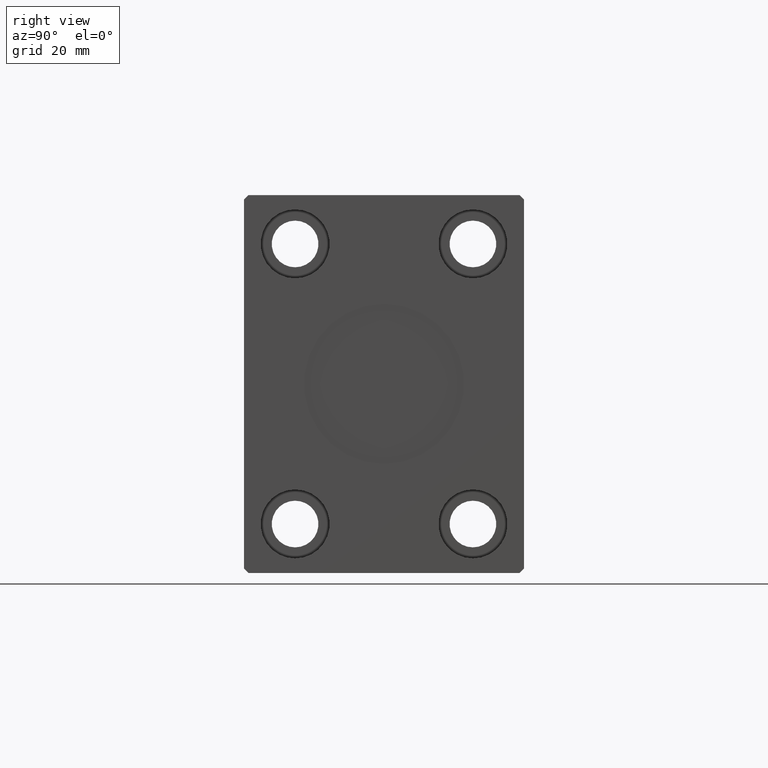
[diagram: clean part render]
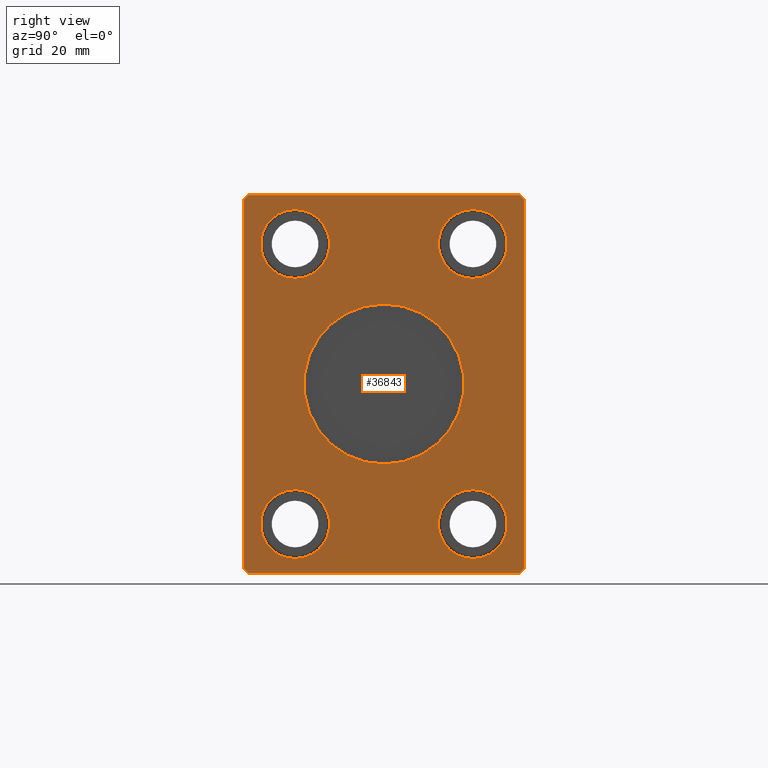
[diagram: same view with one face highlighted and labeled with its STEP entity id]
A machine part, right view. The second image highlights one B-rep face of the part: STEP entity #36843.
In plain terms, the highlighted planar face has unit normal (1, 0, 0).
Its self-contained STEP definition (entity closure, byte-faithful):
#116 = EDGE_CURVE ( 'NONE', #29037, #26347, #9587, .T. ) ;
#762 = AXIS2_PLACEMENT_3D ( 'NONE', #8054, #21176, #34299 ) ;
#823 = CIRCLE ( 'NONE', #26216, 7.750000000000000000 ) ;
#977 = DIRECTION ( 'NONE',  ( 0.000000000000000000, 0.000000000000000000, 1.000000000000000000 ) ) ;
#1123 = EDGE_CURVE ( 'NONE', #24333, #3547, #25897, .T. ) ;
#1917 = CARTESIAN_POINT ( 'NONE',  ( 126.0000000000000000, -30.50000000000000711, -42.50000000000000711 ) ) ;
#2100 = EDGE_LOOP ( 'NONE', ( #15589, #22171 ) ) ;
#2133 = VERTEX_POINT ( 'NONE', #34798 ) ;
#2176 = VERTEX_POINT ( 'NONE', #25128 ) ;
#2202 = EDGE_CURVE ( 'NONE', #31354, #2133, #26649, .T. ) ;
#2366 = CARTESIAN_POINT ( 'NONE',  ( 126.0000000000000000, -19.99999999999999645, -31.49999999999998579 ) ) ;
#2490 = CARTESIAN_POINT ( 'NONE',  ( 126.0000000000000000, 2.204364238465235428E-15, 18.00000000000000000 ) ) ;
#2646 = DIRECTION ( 'NONE',  ( 0.000000000000000000, 0.000000000000000000, -1.000000000000000000 ) ) ;
#2867 = FACE_BOUND ( 'NONE', #36093, .T. ) ;
#3120 = EDGE_CURVE ( 'NONE', #8507, #40627, #11581, .T. ) ;
#3384 = ORIENTED_EDGE ( 'NONE', *, *, #4286, .F. ) ;
#3546 = EDGE_CURVE ( 'NONE', #37913, #38639, #22515, .T. ) ;
#3547 = VERTEX_POINT ( 'NONE', #19152 ) ;
#3558 = VECTOR ( 'NONE', #16260, 1000.000000000000114 ) ;
#3682 = CARTESIAN_POINT ( 'NONE',  ( 126.0000000000000000, 31.50000000000001421, 41.49999999999999289 ) ) ;
#3929 = CARTESIAN_POINT ( 'NONE',  ( 126.0000000000000000, -19.99999999999999645, -23.74999999999998579 ) ) ;
#4286 = EDGE_CURVE ( 'NONE', #9559, #11345, #40404, .T. ) ;
#4415 = EDGE_CURVE ( 'NONE', #11345, #9559, #25316, .T. ) ;
#4643 = ORIENTED_EDGE ( 'NONE', *, *, #16616, .T. ) ;
#5217 = EDGE_LOOP ( 'NONE', ( #21263, #3384 ) ) ;
#5673 = LINE ( 'NONE', #42412, #26559 ) ;
#5866 = DIRECTION ( 'NONE',  ( 0.000000000000000000, 0.000000000000000000, -1.000000000000000000 ) ) ;
#5902 = ORIENTED_EDGE ( 'NONE', *, *, #3546, .F. ) ;
#6226 = DIRECTION ( 'NONE',  ( -1.000000000000000000, -0.000000000000000000, -0.000000000000000000 ) ) ;
#6233 = CARTESIAN_POINT ( 'NONE',  ( 126.0000000000000000, -19.99999999999999645, -31.49999999999998579 ) ) ;
#6281 = CARTESIAN_POINT ( 'NONE',  ( 126.0000000000000000, 0.000000000000000000, 0.000000000000000000 ) ) ;
#6303 = CARTESIAN_POINT ( 'NONE',  ( 126.0000000000000000, -31.50000000000000000, -41.50000000000000711 ) ) ;
#6561 = DIRECTION ( 'NONE',  ( 0.000000000000000000, 0.000000000000000000, 1.000000000000000000 ) ) ;
#6746 = VECTOR ( 'NONE', #26093, 1000.000000000000114 ) ;
#6820 = DIRECTION ( 'NONE',  ( 0.000000000000000000, 0.000000000000000000, 1.000000000000000000 ) ) ;
#6865 = AXIS2_PLACEMENT_3D ( 'NONE', #15927, #6226, #32052 ) ;
#6951 = DIRECTION ( 'NONE',  ( 0.000000000000000000, 0.7071067811865462405, 0.7071067811865489050 ) ) ;
#6959 = CARTESIAN_POINT ( 'NONE',  ( 126.0000000000000000, -30.50000000000000355, 42.49999999999999289 ) ) ;
#7088 = VERTEX_POINT ( 'NONE', #12485 ) ;
#7171 = LINE ( 'NONE', #6959, #19267 ) ;
#7396 = AXIS2_PLACEMENT_3D ( 'NONE', #39709, #10048, #6820 ) ;
#8054 = CARTESIAN_POINT ( 'NONE',  ( 126.0000000000000000, 20.00000000000000355, 31.50000000000001421 ) ) ;
#8057 = CARTESIAN_POINT ( 'NONE',  ( 126.0000000000000000, 20.00000000000000355, -39.24999999999998579 ) ) ;
#8123 = EDGE_LOOP ( 'NONE', ( #20203, #33066 ) ) ;
#8407 = CARTESIAN_POINT ( 'NONE',  ( 126.0000000000000000, -19.99999999999999645, -39.24999999999998579 ) ) ;
#8507 = VERTEX_POINT ( 'NONE', #9833 ) ;
#9238 = CARTESIAN_POINT ( 'NONE',  ( 126.0000000000000000, 20.00000000000000355, 31.50000000000001421 ) ) ;
#9256 = DIRECTION ( 'NONE',  ( 1.000000000000000000, -0.000000000000000000, -0.000000000000000000 ) ) ;
#9301 = FACE_BOUND ( 'NONE', #8123, .T. ) ;
#9447 = DIRECTION ( 'NONE',  ( 0.000000000000000000, 0.000000000000000000, -1.000000000000000000 ) ) ;
#9515 = PLANE ( 'NONE',  #13736 ) ;
#9559 = VERTEX_POINT ( 'NONE', #2490 ) ;
#9587 = LINE ( 'NONE', #13026, #17677 ) ;
#9750 = LINE ( 'NONE', #22646, #6746 ) ;
#9833 = CARTESIAN_POINT ( 'NONE',  ( 126.0000000000000000, -30.50000000000000711, -42.50000000000000711 ) ) ;
#10048 = DIRECTION ( 'NONE',  ( -1.000000000000000000, -0.000000000000000000, -0.000000000000000000 ) ) ;
#10173 = LINE ( 'NONE', #27175, #14459 ) ;
#10363 = VERTEX_POINT ( 'NONE', #20173 ) ;
#10910 = ORIENTED_EDGE ( 'NONE', *, *, #3120, .T. ) ;
#11191 = ORIENTED_EDGE ( 'NONE', *, *, #116, .T. ) ;
#11345 = VERTEX_POINT ( 'NONE', #19935 ) ;
#11581 = LINE ( 'NONE', #1917, #30790 ) ;
#12055 = DIRECTION ( 'NONE',  ( 0.000000000000000000, 0.000000000000000000, -1.000000000000000000 ) ) ;
#12297 = AXIS2_PLACEMENT_3D ( 'NONE', #41118, #17517, #977 ) ;
#12485 = CARTESIAN_POINT ( 'NONE',  ( 126.0000000000000000, -30.50000000000000355, 42.49999999999999289 ) ) ;
#12529 = FACE_OUTER_BOUND ( 'NONE', #26876, .T. ) ;
#12622 = ORIENTED_EDGE ( 'NONE', *, *, #15722, .T. ) ;
#12740 = FACE_BOUND ( 'NONE', #5217, .T. ) ;
#12946 = EDGE_CURVE ( 'NONE', #23159, #10363, #38435, .T. ) ;
#13026 = CARTESIAN_POINT ( 'NONE',  ( 126.0000000000000000, 31.50000000000001421, -41.50000000000000711 ) ) ;
#13736 = AXIS2_PLACEMENT_3D ( 'NONE', #6281, #22410, #2646 ) ;
#14293 = ORIENTED_EDGE ( 'NONE', *, *, #41666, .F. ) ;
#14459 = VECTOR ( 'NONE', #6951, 999.9999999999998863 ) ;
#15030 = DIRECTION ( 'NONE',  ( 0.000000000000000000, 1.000000000000000000, 0.000000000000000000 ) ) ;
#15031 = CARTESIAN_POINT ( 'NONE',  ( 126.0000000000000000, -31.50000000000000000, 41.49999999999999289 ) ) ;
#15056 = DIRECTION ( 'NONE',  ( 0.000000000000000000, 0.000000000000000000, -1.000000000000000000 ) ) ;
#15140 = CARTESIAN_POINT ( 'NONE',  ( 126.0000000000000000, 20.00000000000000355, 23.75000000000001421 ) ) ;
#15262 = CARTESIAN_POINT ( 'NONE',  ( 126.0000000000000000, 0.000000000000000000, 0.000000000000000000 ) ) ;
#15589 = ORIENTED_EDGE ( 'NONE', *, *, #1123, .F. ) ;
#15722 = EDGE_CURVE ( 'NONE', #40627, #29037, #10173, .T. ) ;
#15927 = CARTESIAN_POINT ( 'NONE',  ( 126.0000000000000000, 20.00000000000000355, -31.49999999999998579 ) ) ;
#16260 = DIRECTION ( 'NONE',  ( 0.000000000000000000, -0.7071067811865474617, 0.7071067811865474617 ) ) ;
#16616 = EDGE_CURVE ( 'NONE', #7088, #2176, #7171, .T. ) ;
#17454 = CARTESIAN_POINT ( 'NONE',  ( 126.0000000000000000, 30.50000000000001421, 42.49999999999999289 ) ) ;
#17517 = DIRECTION ( 'NONE',  ( -1.000000000000000000, -0.000000000000000000, -0.000000000000000000 ) ) ;
#17677 = VECTOR ( 'NONE', #6561, 1000.000000000000000 ) ;
#17773 = AXIS2_PLACEMENT_3D ( 'NONE', #18374, #31490, #5866 ) ;
#18100 = VECTOR ( 'NONE', #41645, 1000.000000000000000 ) ;
#18374 = CARTESIAN_POINT ( 'NONE',  ( 126.0000000000000000, 0.000000000000000000, 0.000000000000000000 ) ) ;
#19061 = CARTESIAN_POINT ( 'NONE',  ( 126.0000000000000000, 30.50000000000001776, -42.50000000000000711 ) ) ;
#19152 = CARTESIAN_POINT ( 'NONE',  ( 126.0000000000000000, 20.00000000000000355, 39.25000000000001421 ) ) ;
#19185 = CIRCLE ( 'NONE', #12297, 7.750000000000000000 ) ;
#19267 = VECTOR ( 'NONE', #20724, 999.9999999999998863 ) ;
#19285 = EDGE_CURVE ( 'NONE', #26347, #34256, #35402, .T. ) ;
#19935 = CARTESIAN_POINT ( 'NONE',  ( 126.0000000000000000, 0.000000000000000000, -18.00000000000000000 ) ) ;
#20173 = CARTESIAN_POINT ( 'NONE',  ( 126.0000000000000000, 20.00000000000000355, -23.74999999999998579 ) ) ;
#20203 = ORIENTED_EDGE ( 'NONE', *, *, #12946, .T. ) ;
#20724 = DIRECTION ( 'NONE',  ( 0.000000000000000000, -0.7071067811865462405, -0.7071067811865489050 ) ) ;
#20733 = ORIENTED_EDGE ( 'NONE', *, *, #35887, .T. ) ;
#20871 = DIRECTION ( 'NONE',  ( 0.000000000000000000, 0.000000000000000000, -1.000000000000000000 ) ) ;
#21176 = DIRECTION ( 'NONE',  ( 1.000000000000000000, -0.000000000000000000, -0.000000000000000000 ) ) ;
#21258 = VERTEX_POINT ( 'NONE', #6303 ) ;
#21263 = ORIENTED_EDGE ( 'NONE', *, *, #4415, .F. ) ;
#21288 = DIRECTION ( 'NONE',  ( 1.000000000000000000, 0.000000000000000000, 0.000000000000000000 ) ) ;
#21952 = ORIENTED_EDGE ( 'NONE', *, *, #2202, .T. ) ;
#22113 = LINE ( 'NONE', #15031, #18100 ) ;
#22171 = ORIENTED_EDGE ( 'NONE', *, *, #40007, .F. ) ;
#22410 = DIRECTION ( 'NONE',  ( 1.000000000000000000, 0.000000000000000000, 0.000000000000000000 ) ) ;
#22515 = CIRCLE ( 'NONE', #33536, 7.750000000000000000 ) ;
#22646 = CARTESIAN_POINT ( 'NONE',  ( 126.0000000000000000, -31.50000000000000000, -41.50000000000000711 ) ) ;
#23159 = VERTEX_POINT ( 'NONE', #8057 ) ;
#23752 = ORIENTED_EDGE ( 'NONE', *, *, #24558, .T. ) ;
#23884 = ORIENTED_EDGE ( 'NONE', *, *, #32347, .T. ) ;
#24333 = VERTEX_POINT ( 'NONE', #15140 ) ;
#24558 = EDGE_CURVE ( 'NONE', #2176, #21258, #22113, .T. ) ;
#25128 = CARTESIAN_POINT ( 'NONE',  ( 126.0000000000000000, -31.50000000000000000, 41.49999999999999289 ) ) ;
#25316 = CIRCLE ( 'NONE', #29436, 18.00000000000000000 ) ;
#25897 = CIRCLE ( 'NONE', #34168, 7.750000000000000000 ) ;
#26093 = DIRECTION ( 'NONE',  ( 0.000000000000000000, 0.7071067811865451302, -0.7071067811865500152 ) ) ;
#26216 = AXIS2_PLACEMENT_3D ( 'NONE', #2366, #31615, #15056 ) ;
#26310 = DIRECTION ( 'NONE',  ( 0.000000000000000000, 0.000000000000000000, 1.000000000000000000 ) ) ;
#26347 = VERTEX_POINT ( 'NONE', #3682 ) ;
#26559 = VECTOR ( 'NONE', #35356, 1000.000000000000000 ) ;
#26649 = CIRCLE ( 'NONE', #7396, 7.750000000000000000 ) ;
#26876 = EDGE_LOOP ( 'NONE', ( #35736, #37016, #4643, #23752, #23884, #10910, #12622, #11191 ) ) ;
#26877 = EDGE_CURVE ( 'NONE', #34256, #7088, #5673, .T. ) ;
#27175 = CARTESIAN_POINT ( 'NONE',  ( 126.0000000000000000, 30.50000000000001776, -42.50000000000000711 ) ) ;
#29037 = VERTEX_POINT ( 'NONE', #37980 ) ;
#29113 = DIRECTION ( 'NONE',  ( -1.000000000000000000, -0.000000000000000000, -0.000000000000000000 ) ) ;
#29436 = AXIS2_PLACEMENT_3D ( 'NONE', #15262, #21288, #20871 ) ;
#30141 = CARTESIAN_POINT ( 'NONE',  ( 126.0000000000000000, -19.99999999999999645, 23.75000000000001421 ) ) ;
#30790 = VECTOR ( 'NONE', #15030, 1000.000000000000000 ) ;
#30794 = CIRCLE ( 'NONE', #36275, 7.750000000000000000 ) ;
#31354 = VERTEX_POINT ( 'NONE', #30141 ) ;
#31490 = DIRECTION ( 'NONE',  ( 1.000000000000000000, 0.000000000000000000, 0.000000000000000000 ) ) ;
#31615 = DIRECTION ( 'NONE',  ( 1.000000000000000000, -0.000000000000000000, -0.000000000000000000 ) ) ;
#31976 = CARTESIAN_POINT ( 'NONE',  ( 126.0000000000000000, 31.50000000000001421, 41.49999999999999289 ) ) ;
#32052 = DIRECTION ( 'NONE',  ( 0.000000000000000000, 0.000000000000000000, 1.000000000000000000 ) ) ;
#32347 = EDGE_CURVE ( 'NONE', #21258, #8507, #9750, .T. ) ;
#32352 = EDGE_CURVE ( 'NONE', #10363, #23159, #30794, .T. ) ;
#33066 = ORIENTED_EDGE ( 'NONE', *, *, #32352, .T. ) ;
#33536 = AXIS2_PLACEMENT_3D ( 'NONE', #6233, #9256, #12055 ) ;
#34168 = AXIS2_PLACEMENT_3D ( 'NONE', #9238, #38887, #9447 ) ;
#34256 = VERTEX_POINT ( 'NONE', #17454 ) ;
#34299 = DIRECTION ( 'NONE',  ( 0.000000000000000000, 0.000000000000000000, -1.000000000000000000 ) ) ;
#34798 = CARTESIAN_POINT ( 'NONE',  ( 126.0000000000000000, -19.99999999999999645, 39.25000000000001421 ) ) ;
#35356 = DIRECTION ( 'NONE',  ( 0.000000000000000000, -1.000000000000000000, 0.000000000000000000 ) ) ;
#35402 = LINE ( 'NONE', #31976, #3558 ) ;
#35736 = ORIENTED_EDGE ( 'NONE', *, *, #19285, .T. ) ;
#35887 = EDGE_CURVE ( 'NONE', #2133, #31354, #19185, .T. ) ;
#35972 = EDGE_LOOP ( 'NONE', ( #21952, #20733 ) ) ;
#36093 = EDGE_LOOP ( 'NONE', ( #5902, #14293 ) ) ;
#36275 = AXIS2_PLACEMENT_3D ( 'NONE', #42395, #29113, #26310 ) ;
#36843 = ADVANCED_FACE ( 'NONE', ( #12740, #41743, #9301, #12529, #2867, #38321 ), #9515, .T. ) ;
#37016 = ORIENTED_EDGE ( 'NONE', *, *, #26877, .T. ) ;
#37110 = CIRCLE ( 'NONE', #762, 7.750000000000000000 ) ;
#37913 = VERTEX_POINT ( 'NONE', #8407 ) ;
#37980 = CARTESIAN_POINT ( 'NONE',  ( 126.0000000000000000, 31.50000000000001421, -41.50000000000000711 ) ) ;
#38321 = FACE_BOUND ( 'NONE', #2100, .T. ) ;
#38435 = CIRCLE ( 'NONE', #6865, 7.750000000000000000 ) ;
#38639 = VERTEX_POINT ( 'NONE', #3929 ) ;
#38887 = DIRECTION ( 'NONE',  ( 1.000000000000000000, -0.000000000000000000, -0.000000000000000000 ) ) ;
#39709 = CARTESIAN_POINT ( 'NONE',  ( 126.0000000000000000, -19.99999999999999645, 31.50000000000001421 ) ) ;
#40007 = EDGE_CURVE ( 'NONE', #3547, #24333, #37110, .T. ) ;
#40404 = CIRCLE ( 'NONE', #17773, 18.00000000000000000 ) ;
#40627 = VERTEX_POINT ( 'NONE', #19061 ) ;
#41118 = CARTESIAN_POINT ( 'NONE',  ( 126.0000000000000000, -19.99999999999999645, 31.50000000000001421 ) ) ;
#41645 = DIRECTION ( 'NONE',  ( 0.000000000000000000, 0.000000000000000000, -1.000000000000000000 ) ) ;
#41666 = EDGE_CURVE ( 'NONE', #38639, #37913, #823, .T. ) ;
#41743 = FACE_BOUND ( 'NONE', #35972, .T. ) ;
#42395 = CARTESIAN_POINT ( 'NONE',  ( 126.0000000000000000, 20.00000000000000355, -31.49999999999998579 ) ) ;
#42412 = CARTESIAN_POINT ( 'NONE',  ( 126.0000000000000000, 30.50000000000001421, 42.49999999999999289 ) ) ;